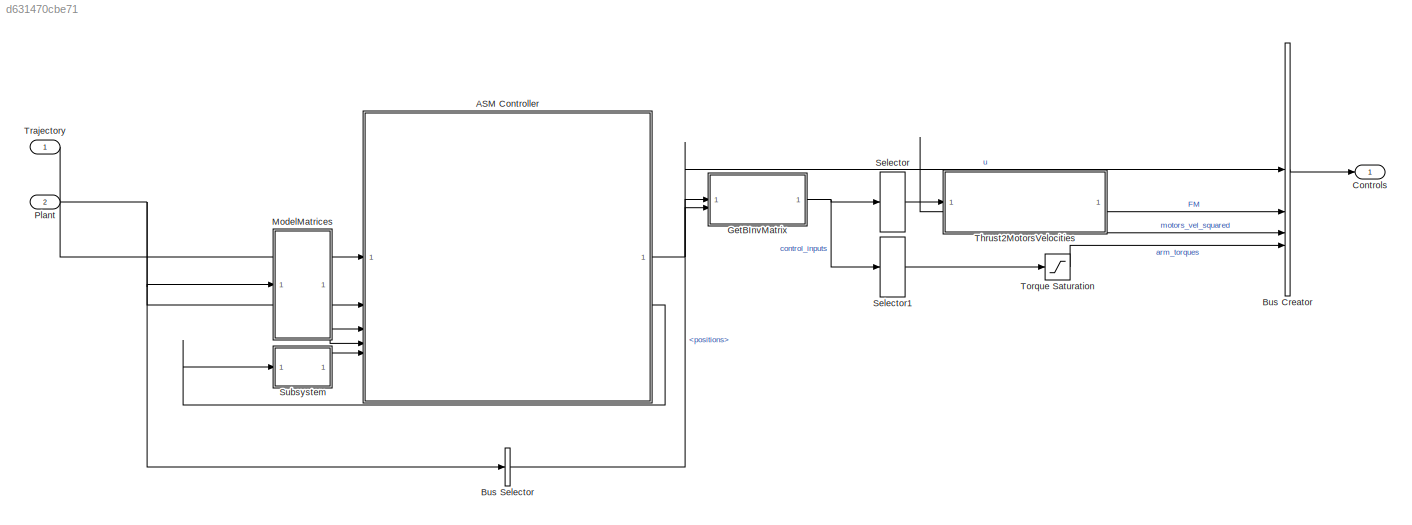
MODEL slx_d631470cbe71
KIND model
CONFIG AbsTol = auto
CONFIG EnableMultiTasking = off
CONFIG FixedStep = 0.01
CONFIG MaxStep = auto
CONFIG MinStep = auto
CONFIG RelTol = 1e-3
CONFIG SampleTimeConstraint = Unconstrained
CONFIG SolverName = ode4
CONFIG StartTime = 0.0
CONFIG StopTime = 10.0
BLOCK [SubSystem] ASM Controller
  ReferencedSubsystem = ASMController
BLOCK [BusCreator] Bus Creator
  DisplayOption = bar
  InheritFromInputs = on
  Inputs = 4
BLOCK [BusSelector] Bus Selector
  OutputSignals = positions
BLOCK [Outport] Controls
  OutDataTypeStr = Bus: ControlsBusDef
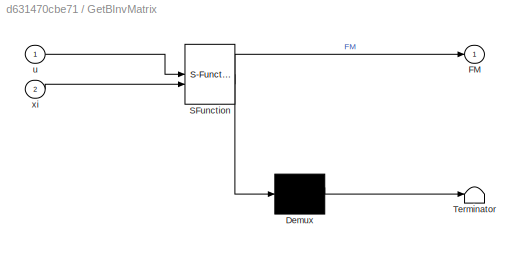
BLOCK [SubSystem] GetBInvMatrix
  ErrorFcn = Stateflow.Translate.translate
  LibrarySourceBlock = simulink/User-Defined\nFunctions/MATLAB Function
  PermitHierarchicalResolution = ExplicitOnly
  SFBlockType = MATLAB Function
  TreatAsAtomicUnit = on
BLOCK [Demux] GetBInvMatrix/ Demux 
  Outputs = 1
BLOCK [S-Function] GetBInvMatrix/ SFunction 
  EnableBusSupport = on
  FunctionName = sf_sfun
  PortCounts = [2 2]
  SFcnIsStateOwnerBlock = off
  SFunctionDeploymentMode = off
  Tag = Stateflow S-Function 2
BLOCK [Terminator] GetBInvMatrix/ Terminator 
BLOCK [Outport] GetBInvMatrix/FM
BLOCK [Inport] GetBInvMatrix/u
BLOCK [Inport] GetBInvMatrix/xi
  Port = 2
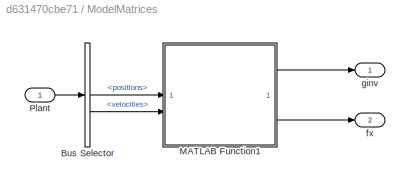
BLOCK [SubSystem] ModelMatrices
  NameLocation = top
BLOCK [BusSelector] ModelMatrices/Bus Selector
  OutputSignals = positions,velocities
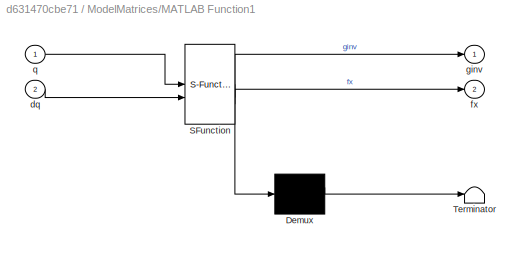
BLOCK [SubSystem] ModelMatrices/MATLAB Function1
  ErrorFcn = Stateflow.Translate.translate
  LibrarySourceBlock = simulink/User-Defined\nFunctions/MATLAB Function
  NameLocation = top
  PermitHierarchicalResolution = ExplicitOnly
  SFBlockType = MATLAB Function
  TreatAsAtomicUnit = on
BLOCK [Demux] ModelMatrices/MATLAB Function1/ Demux 
  Outputs = 1
BLOCK [S-Function] ModelMatrices/MATLAB Function1/ SFunction 
  EnableBusSupport = on
  FunctionName = sf_sfun
  Parameters = ArmConstants,HexaConstants
  PortCounts = [2 3]
  SFcnIsStateOwnerBlock = off
  SFunctionDeploymentMode = off
  Tag = Stateflow S-Function 10
BLOCK [Terminator] ModelMatrices/MATLAB Function1/ Terminator 
BLOCK [Inport] ModelMatrices/MATLAB Function1/dq
  Port = 2
BLOCK [Outport] ModelMatrices/MATLAB Function1/fx
  Port = 2
BLOCK [Outport] ModelMatrices/MATLAB Function1/ginv
BLOCK [Inport] ModelMatrices/MATLAB Function1/q
BLOCK [Inport] ModelMatrices/Plant
BLOCK [Outport] ModelMatrices/fx
  Port = 2
BLOCK [Outport] ModelMatrices/ginv
BLOCK [Inport] Plant
  OutDataTypeStr = Bus: PlantBusDef
  Port = 2
  SampleTime = 0.01
BLOCK [Selector] Selector
  IndexOptions = Index vector (dialog)
  Indices = 1:6
  InputPortWidth = 8
  OutputSizes = 1
BLOCK [Selector] Selector1
  IndexOptions = Index vector (dialog)
  Indices = 7:8
  InputPortWidth = 8
  OutputSizes = 1
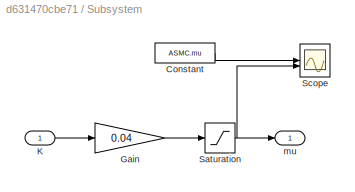
BLOCK [SubSystem] Subsystem
BLOCK [Constant] Subsystem/Constant
  SampleTime = -1
  Value = ASMC.mu
BLOCK [Gain] Subsystem/Gain
  Gain = 0.04
BLOCK [Inport] Subsystem/K
BLOCK [Saturate] Subsystem/Saturation
  LowerLimit = zeros(size(ASMC.mu))
  UpperLimit = ASMC.mu
BLOCK [Scope] Subsystem/Scope
  Floating = off
  NumInputPorts = 2
  ScopeSpecificationString = Simulink.scopes.TimeScopeBlockCfg('CurrentConfiguration', extmgr.ConfigurationSet(extmgr.Configuration('Core','General UI',true),extmgr.Configuration('Core','Source UI',true),extmgr.Configuration('Sources','WiredSimulink',true),extmgr.Configuration('Visuals','Time Domain',true,'SerializedDisplays',{struct('MinYLimReal','-0.65625','MaxYLimReal','5.90625','YLabelReal','','MinYLimMag','0.00000','MaxY...<+1570ch>
BLOCK [Outport] Subsystem/mu
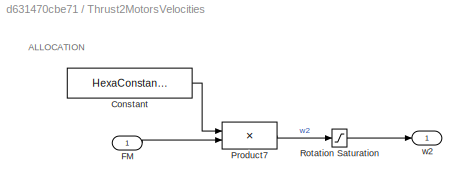
BLOCK [SubSystem] Thrust2MotorsVelocities
BLOCK [Constant] Thrust2MotorsVelocities/Constant
  SampleTime = -1
  Value = HexaConstants.invallo
BLOCK [Inport] Thrust2MotorsVelocities/FM
BLOCK [Product] Thrust2MotorsVelocities/Product7
  Multiplication = Matrix(*)
BLOCK [Saturate] Thrust2MotorsVelocities/Rotation Saturation
  LowerLimit = 0
  UpperLimit = 8.77e+05
BLOCK [Outport] Thrust2MotorsVelocities/w2
BLOCK [Saturate] Torque Saturation
  LowerLimit = -ArmConstants.Servos.T1max
  UpperLimit = ArmConstants.Servos.T1max
BLOCK [Inport] Trajectory
  OutDataTypeStr = Bus: TrajectoryBusDef
  SampleTime = 0.01
ANNOTATION Thrust2MotorsVelocities: ALLOCATION
NET ASM Controller:1 -> Bus Creator:1, GetBInvMatrix:1
LINE ASM Controller:2 -> Subsystem:1
LINE Bus Creator:1 -> Controls:1
LINE Bus Selector:1 -> GetBInvMatrix:2
NET GetBInvMatrix:1 -> Selector1:1, Selector:1
LINE ModelMatrices/Bus Selector:1 -> ModelMatrices/MATLAB Function1:1
LINE ModelMatrices/Bus Selector:2 -> ModelMatrices/MATLAB Function1:2
LINE ModelMatrices/MATLAB Function1:1 -> ModelMatrices/ginv:1
LINE ModelMatrices/MATLAB Function1:2 -> ModelMatrices/fx:1
LINE ModelMatrices/Plant:1 -> ModelMatrices/Bus Selector:1
LINE ModelMatrices:1 -> ASM Controller:3
LINE ModelMatrices:2 -> ASM Controller:4
NET Plant:1 -> ASM Controller:2, Bus Selector:1, ModelMatrices:1
LINE Selector1:1 -> Torque Saturation:1
NET Selector:1 -> Bus Creator:2, Thrust2MotorsVelocities:1
LINE Subsystem/Constant:1 -> Subsystem/Scope:1
LINE Subsystem/Gain:1 -> Subsystem/Saturation:1
LINE Subsystem/K:1 -> Subsystem/Gain:1
NET Subsystem/Saturation:1 -> Subsystem/Scope:2, Subsystem/mu:1
LINE Subsystem:1 -> ASM Controller:5
LINE Thrust2MotorsVelocities/Constant:1 -> Thrust2MotorsVelocities/Product7:1
LINE Thrust2MotorsVelocities/FM:1 -> Thrust2MotorsVelocities/Product7:2
LINE Thrust2MotorsVelocities/Product7:1 -> Thrust2MotorsVelocities/Rotation Saturation:1
LINE Thrust2MotorsVelocities/Rotation Saturation:1 -> Thrust2MotorsVelocities/w2:1
LINE Thrust2MotorsVelocities:1 -> Bus Creator:3
LINE Torque Saturation:1 -> Bus Creator:4
LINE Trajectory:1 -> ASM Controller:1
note: NET lines group one-source signal fan-out (src -> all destinations, sorted); 1:1 wires keep LINE
CHART GetBInvMatrix states=1 transitions=1
  STATE_LABEL 'eML_blk_kernel()'
  STATE_LABEL 'SCRIPT:\nfunction FM = GetBInvMatrix(u,xi)\n\nBM1 = BMatrix(xi);\n\nBM = blkdiag(BM1, eye(2,2));\n\nFM = BM\\u;\n\nend\n'
CHART ModelMatrices/MATLAB Function1 states=1 transitions=1
  STATE_LABEL 'eML_blk_kernel()'
  STATE_LABEL 'SCRIPT:\nfunction [ginv, fx] = Get_DCG_Hexa(q, dq, HexaConstants, ArmConstants)\n\nDM = DMatrix(q, HexaConstants, ArmConstants);\nCM = CMatrix(q, dq, HexaConstants, ArmConstants);\nGv = GVector(q, HexaConstants, ArmConstants);\n\nginv = DM;\n\nfx = DM\\( -CM*dq - Gv );\n\nend\n'
CHART  states=0 transitions=0
CHART  states=0 transitions=0
